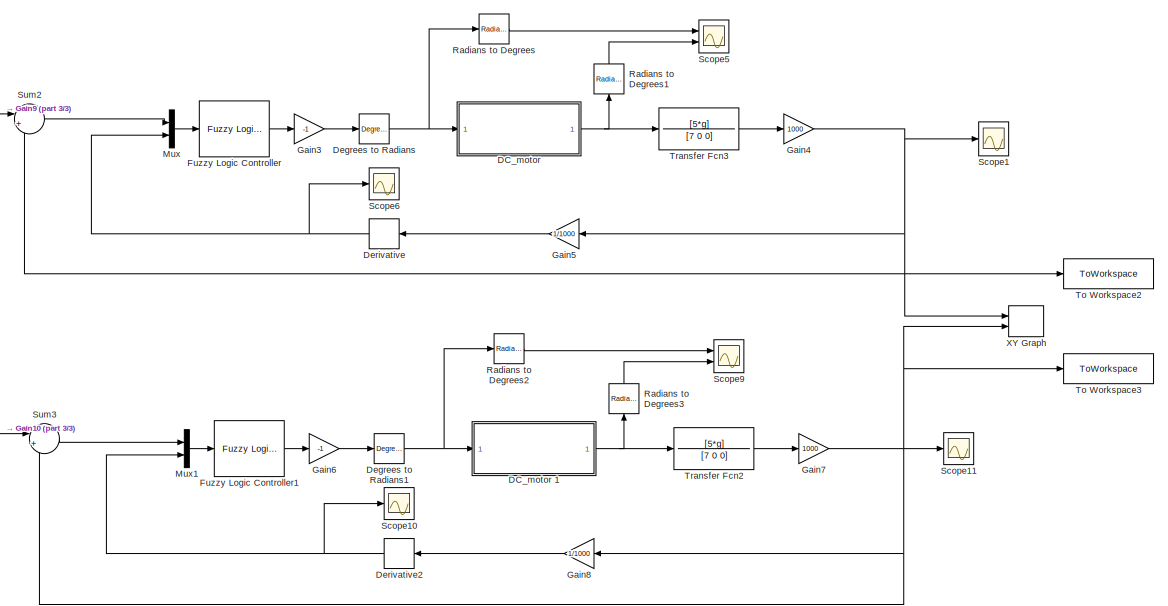
[diagram: root canvas - part 1/3, right side, full height]
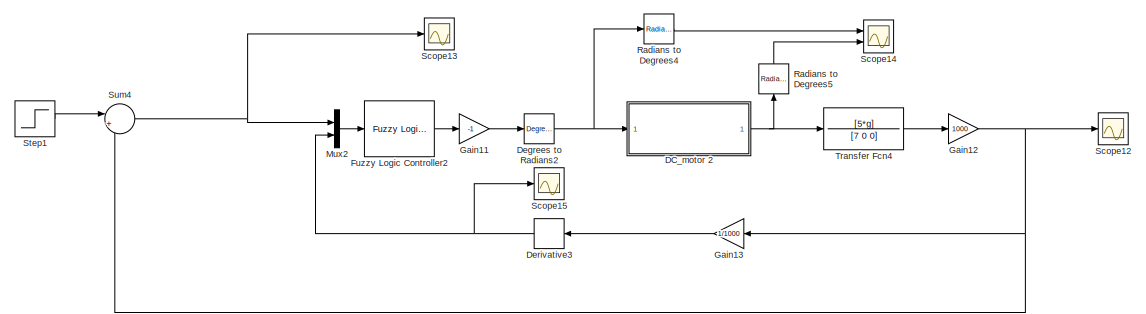
[diagram: root canvas - part 2/3, middle left region]
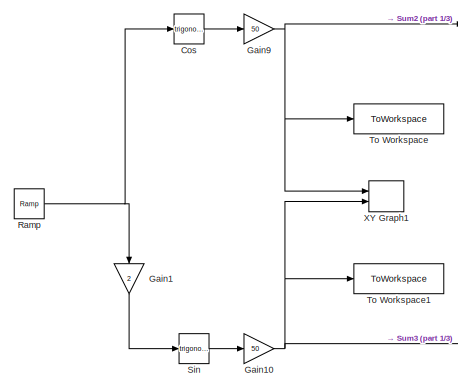
[diagram: root canvas - part 3/3, central region]
MODEL slx_66299d104e34
KIND model
CONFIG AbsTol = auto
CONFIG EnableMultiTasking = off
CONFIG FixedStep = 0.01
CONFIG MaxStep = auto
CONFIG MinStep = auto
CONFIG RelTol = 1e-3
CONFIG SampleTimeConstraint = Unconstrained
CONFIG SolverName = FixedStepAuto
CONFIG StartTime = 0.0
CONFIG StopTime = 17
BLOCK [Trigonometry] Cos
  Ports = [1, 1]
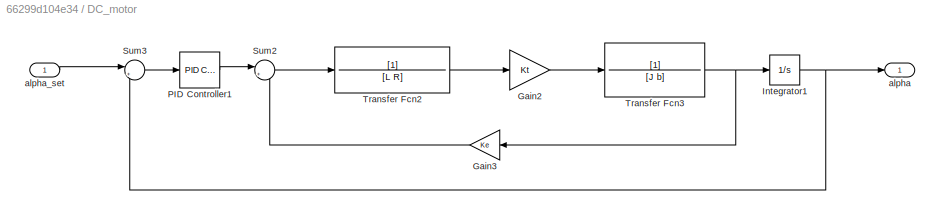
BLOCK [SubSystem] DC_motor 
  Ports = [1, 1]
  RequestExecContextInheritance = off
BLOCK [Gain] DC_motor /Gain2
  Gain = Kt
BLOCK [Gain] DC_motor /Gain3
  Gain = Ke
  NameLocation = top
BLOCK [Integrator] DC_motor /Integrator1
  Ports = [1, 1]
BLOCK [Reference] DC_motor /PID Controller1  REF=slpidlib/PID Controller
  Ports = [1, 1]
  SourceBlock = slpidlib/PID Controller
  SourceProductBaseCode = SL
  SourceType = PID 1dof
BLOCK [Sum] DC_motor /Sum2
  Inputs = |+-
  Ports = [2, 1]
BLOCK [Sum] DC_motor /Sum3
  Inputs = |+-
  Ports = [2, 1]
BLOCK [TransferFcn] DC_motor /Transfer Fcn2
  Denominator = [L R]
BLOCK [TransferFcn] DC_motor /Transfer Fcn3
  Denominator = [J b]
BLOCK [Outport] DC_motor /alpha
BLOCK [Inport] DC_motor /alpha_set
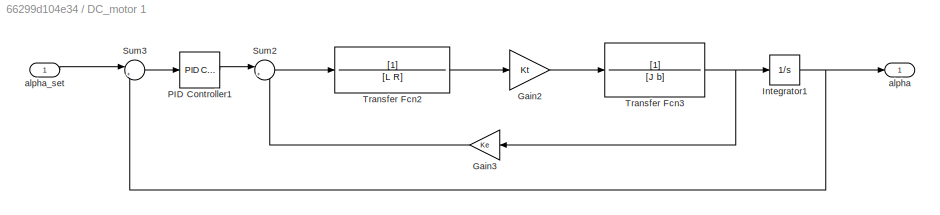
BLOCK [SubSystem] DC_motor 1
  Ports = [1, 1]
  RequestExecContextInheritance = off
BLOCK [Gain] DC_motor 1/Gain2
  Gain = Kt
BLOCK [Gain] DC_motor 1/Gain3
  Gain = Ke
  NameLocation = top
BLOCK [Integrator] DC_motor 1/Integrator1
  Ports = [1, 1]
BLOCK [Reference] DC_motor 1/PID Controller1  REF=slpidlib/PID Controller
  Ports = [1, 1]
  SourceBlock = slpidlib/PID Controller
  SourceProductBaseCode = SL
  SourceType = PID 1dof
BLOCK [Sum] DC_motor 1/Sum2
  Inputs = |+-
  Ports = [2, 1]
BLOCK [Sum] DC_motor 1/Sum3
  Inputs = |+-
  Ports = [2, 1]
BLOCK [TransferFcn] DC_motor 1/Transfer Fcn2
  Denominator = [L R]
BLOCK [TransferFcn] DC_motor 1/Transfer Fcn3
  Denominator = [J b]
BLOCK [Outport] DC_motor 1/alpha
BLOCK [Inport] DC_motor 1/alpha_set
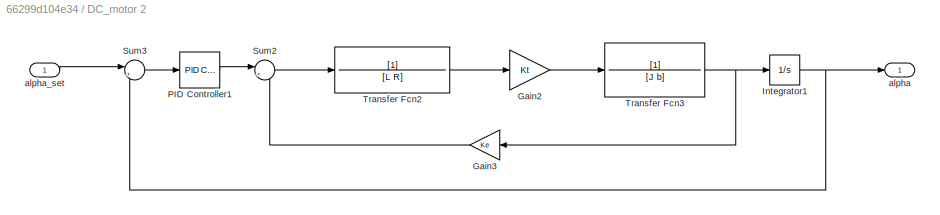
BLOCK [SubSystem] DC_motor 2
  Ports = [1, 1]
  RequestExecContextInheritance = off
BLOCK [Gain] DC_motor 2/Gain2
  Gain = Kt
BLOCK [Gain] DC_motor 2/Gain3
  Gain = Ke
  NameLocation = top
BLOCK [Integrator] DC_motor 2/Integrator1
  Ports = [1, 1]
BLOCK [Reference] DC_motor 2/PID Controller1  REF=slpidlib/PID Controller
  Ports = [1, 1]
  SourceBlock = slpidlib/PID Controller
  SourceProductBaseCode = SL
  SourceType = PID 1dof
BLOCK [Sum] DC_motor 2/Sum2
  Inputs = |+-
  Ports = [2, 1]
BLOCK [Sum] DC_motor 2/Sum3
  Inputs = |+-
  Ports = [2, 1]
BLOCK [TransferFcn] DC_motor 2/Transfer Fcn2
  Denominator = [L R]
BLOCK [TransferFcn] DC_motor 2/Transfer Fcn3
  Denominator = [J b]
BLOCK [Outport] DC_motor 2/alpha
BLOCK [Inport] DC_motor 2/alpha_set
BLOCK [Reference] Degrees to Radians  REF=simulink_extras/Transformations/Degrees to
Radians
  Ports = [1, 1]
  SourceBlock = simulink_extras/Transformations/Degrees to\nRadians
  SourceProductBaseCode = SL
  SourceType = DegreesToRadians
BLOCK [Reference] Degrees to Radians1  REF=simulink_extras/Transformations/Degrees to
Radians
  Ports = [1, 1]
  SourceBlock = simulink_extras/Transformations/Degrees to\nRadians
  SourceProductBaseCode = SL
  SourceType = DegreesToRadians
BLOCK [Reference] Degrees to Radians2  REF=simulink_extras/Transformations/Degrees to
Radians
  Ports = [1, 1]
  SourceBlock = simulink_extras/Transformations/Degrees to\nRadians
  SourceProductBaseCode = SL
  SourceType = DegreesToRadians
BLOCK [Derivative] Derivative
  NameLocation = top
BLOCK [Derivative] Derivative2
  NameLocation = top
BLOCK [Derivative] Derivative3
  NameLocation = top
BLOCK [Reference] Fuzzy Logic Controller  REF=fuzblock/Fuzzy Logic   (lib defined in mdl_858b3b3e7478)
Controller
  Ports = [1, 1]
  SourceBlock = fuzblock/Fuzzy Logic \nController
  SourceProductBaseCode = FL
  SourceType = Fuzzy Inference System
BLOCK [Reference] Fuzzy Logic Controller1  REF=fuzblock/Fuzzy Logic   (lib defined in mdl_858b3b3e7478)
Controller
  Ports = [1, 1]
  SourceBlock = fuzblock/Fuzzy Logic \nController
  SourceProductBaseCode = FL
  SourceType = Fuzzy Inference System
BLOCK [Reference] Fuzzy Logic Controller2  REF=fuzblock/Fuzzy Logic   (lib defined in mdl_858b3b3e7478)
Controller
  Ports = [1, 1]
  SourceBlock = fuzblock/Fuzzy Logic \nController
  SourceProductBaseCode = FL
  SourceType = Fuzzy Inference System
BLOCK [Gain] Gain1
  Gain = 2
  NameLocation = left
BLOCK [Gain] Gain10
  Gain = 50
BLOCK [Gain] Gain11
  Gain = -1
BLOCK [Gain] Gain12
  Gain = 1000
BLOCK [Gain] Gain13
  Gain = 1/1000
  NameLocation = top
BLOCK [Gain] Gain3
  Gain = -1
BLOCK [Gain] Gain4
  Gain = 1000
BLOCK [Gain] Gain5
  Gain = 1/1000
  NameLocation = top
BLOCK [Gain] Gain6
  Gain = -1
BLOCK [Gain] Gain7
  Gain = 1000
BLOCK [Gain] Gain8
  Gain = 1/1000
  NameLocation = top
BLOCK [Gain] Gain9
  Gain = 50
BLOCK [Mux] Mux
  DisplayOption = bar
  Inputs = 2
  Ports = [2, 1]
BLOCK [Mux] Mux1
  DisplayOption = bar
  Inputs = 2
  Ports = [2, 1]
BLOCK [Mux] Mux2
  DisplayOption = bar
  Inputs = 2
  Ports = [2, 1]
BLOCK [Reference] Radians to Degrees  REF=simulink_extras/Transformations/Radians
to Degrees
  Ports = [1, 1]
  SourceBlock = simulink_extras/Transformations/Radians\nto Degrees
  SourceProductBaseCode = SL
  SourceType = RadiansToDegrees
BLOCK [Reference] Radians to Degrees1  REF=simulink_extras/Transformations/Radians
to Degrees
  NameLocation = right
  Ports = [1, 1]
  SourceBlock = simulink_extras/Transformations/Radians\nto Degrees
  SourceProductBaseCode = SL
  SourceType = RadiansToDegrees
BLOCK [Reference] Radians to Degrees2  REF=simulink_extras/Transformations/Radians
to Degrees
  Ports = [1, 1]
  SourceBlock = simulink_extras/Transformations/Radians\nto Degrees
  SourceProductBaseCode = SL
  SourceType = RadiansToDegrees
BLOCK [Reference] Radians to Degrees3  REF=simulink_extras/Transformations/Radians
to Degrees
  NameLocation = right
  Ports = [1, 1]
  SourceBlock = simulink_extras/Transformations/Radians\nto Degrees
  SourceProductBaseCode = SL
  SourceType = RadiansToDegrees
BLOCK [Reference] Radians to Degrees4  REF=simulink_extras/Transformations/Radians
to Degrees
  Ports = [1, 1]
  SourceBlock = simulink_extras/Transformations/Radians\nto Degrees
  SourceProductBaseCode = SL
  SourceType = RadiansToDegrees
BLOCK [Reference] Radians to Degrees5  REF=simulink_extras/Transformations/Radians
to Degrees
  NameLocation = right
  Ports = [1, 1]
  SourceBlock = simulink_extras/Transformations/Radians\nto Degrees
  SourceProductBaseCode = SL
  SourceType = RadiansToDegrees
BLOCK [Reference] Ramp  REF=simulink/Sources/Ramp
  Ports = [0, 1]
  SourceBlock = simulink/Sources/Ramp
  SourceProductBaseCode = SL
  SourceType = Ramp
BLOCK [Scope] Scope1
  Floating = off
  NumInputPorts = 1
  Ports = [1]
  ScopeSpecificationString = Simulink.scopes.TimeScopeBlockCfg('CurrentConfiguration', extmgr.ConfigurationSet(extmgr.Configuration('Core','General UI',true,'FigureColor',[1 1 1]),extmgr.Configuration('Core','Source UI',true),extmgr.Configuration('Sources','WiredSimulink',true,'DataLoggingVariableName','ScopeData1'),extmgr.Configuration('Visuals','Time Domain',true,'SerializedDisplays',{struct('MinYLimReal','-6.36625','MaxYLi...<+1561ch>
BLOCK [Scope] Scope10
  Floating = off
  NumInputPorts = 1
  Ports = [1]
  ScopeSpecificationString = Simulink.scopes.TimeScopeBlockCfg('CurrentConfiguration', extmgr.ConfigurationSet(extmgr.Configuration('Core','General UI',true),extmgr.Configuration('Core','Source UI',true),extmgr.Configuration('Sources','WiredSimulink',true,'DataLoggingVariableName','ScopeData1'),extmgr.Configuration('Visuals','Time Domain',true,'SerializedDisplays',{struct('MinYLimReal','-0.0762','MaxYLimReal','0.12111','YLabe...<+1438ch>
BLOCK [Scope] Scope11
  Floating = off
  NumInputPorts = 1
  Ports = [1]
  ScopeSpecificationString = Simulink.scopes.TimeScopeBlockCfg('CurrentConfiguration', extmgr.ConfigurationSet(extmgr.Configuration('Core','General UI',true,'FigureColor',[1 1 1]),extmgr.Configuration('Core','Source UI',true),extmgr.Configuration('Sources','WiredSimulink',true,'DataLoggingVariableName','ScopeData4'),extmgr.Configuration('Visuals','Time Domain',true,'SerializedDisplays',{struct('MinYLimReal','-63.8992','MaxYLi...<+1561ch>
BLOCK [Scope] Scope12
  Floating = off
  NumInputPorts = 1
  Ports = [1]
  ScopeSpecificationString = Simulink.scopes.TimeScopeBlockCfg('CurrentConfiguration', extmgr.ConfigurationSet(extmgr.Configuration('Core','General UI',true,'FigureColor',[1 1 1]),extmgr.Configuration('Core','Source UI',true),extmgr.Configuration('Sources','WiredSimulink',true,'DataLoggingVariableName','ScopeData1'),extmgr.Configuration('Visuals','Time Domain',true,'SerializedDisplays',{struct('MinYLimReal','-203.79732','MaxY...<+1588ch>
BLOCK [Scope] Scope13
  Floating = off
  NumInputPorts = 1
  Ports = [1]
  ScopeSpecificationString = Simulink.scopes.TimeScopeBlockCfg('CurrentConfiguration', extmgr.ConfigurationSet(extmgr.Configuration('Core','General UI',true),extmgr.Configuration('Core','Source UI',true),extmgr.Configuration('Sources','WiredSimulink',true,'DataLoggingVariableName','ScopeData2'),extmgr.Configuration('Visuals','Time Domain',true,'SerializedDisplays',{struct('MinYLimReal','-7.29379','MaxYLimReal','56.36598','YLa...<+1467ch>
BLOCK [Scope] Scope14
  Floating = off
  NumInputPorts = 2
  Ports = [2]
  ScopeSpecificationString = Simulink.scopes.TimeScopeBlockCfg('CurrentConfiguration', extmgr.ConfigurationSet(extmgr.Configuration('Core','General UI',true),extmgr.Configuration('Core','Source UI',true),extmgr.Configuration('Sources','WiredSimulink',true,'DataLoggingVariableName','ScopeData3'),extmgr.Configuration('Visuals','Time Domain',true,'SerializedDisplays',{struct('MinYLimReal','-4.24583','MaxYLimReal','4.24273','YLab...<+1862ch>
BLOCK [Scope] Scope15
  Floating = off
  NumInputPorts = 1
  Ports = [1]
  ScopeSpecificationString = Simulink.scopes.TimeScopeBlockCfg('CurrentConfiguration', extmgr.ConfigurationSet(extmgr.Configuration('Core','General UI',true),extmgr.Configuration('Core','Source UI',true),extmgr.Configuration('Sources','WiredSimulink',true,'DataLoggingVariableName','ScopeData4'),extmgr.Configuration('Visuals','Time Domain',true,'SerializedDisplays',{struct('MinYLimReal','-0.0762','MaxYLimReal','0.12111','YLabe...<+1798ch>
BLOCK [Scope] Scope5
  Floating = off
  NumInputPorts = 2
  Ports = [2]
  ScopeSpecificationString = Simulink.scopes.TimeScopeBlockCfg('CurrentConfiguration', extmgr.ConfigurationSet(extmgr.Configuration('Core','General UI',true),extmgr.Configuration('Core','Source UI',true),extmgr.Configuration('Sources','WiredSimulink',true,'DataLoggingVariableName','ScopeData5'),extmgr.Configuration('Visuals','Time Domain',true,'SerializedDisplays',{struct('MinYLimReal','-8.48122','MaxYLimReal','8.49118','YLab...<+1500ch>
BLOCK [Scope] Scope6
  Floating = off
  NumInputPorts = 1
  Ports = [1]
  ScopeSpecificationString = Simulink.scopes.TimeScopeBlockCfg('CurrentConfiguration', extmgr.ConfigurationSet(extmgr.Configuration('Core','General UI',true),extmgr.Configuration('Core','Source UI',true),extmgr.Configuration('Sources','WiredSimulink',true,'DataLoggingVariableName','ScopeData1'),extmgr.Configuration('Visuals','Time Domain',true,'SerializedDisplays',{struct('MinYLimReal','-0.0762','MaxYLimReal','0.12111','YLabe...<+1438ch>
BLOCK [Scope] Scope9
  Floating = off
  NumInputPorts = 2
  Ports = [2]
  ScopeSpecificationString = Simulink.scopes.TimeScopeBlockCfg('CurrentConfiguration', extmgr.ConfigurationSet(extmgr.Configuration('Core','General UI',true),extmgr.Configuration('Core','Source UI',true),extmgr.Configuration('Sources','WiredSimulink',true,'DataLoggingVariableName','ScopeData3'),extmgr.Configuration('Visuals','Time Domain',true,'SerializedDisplays',{struct('MinYLimReal','-8.48122','MaxYLimReal','8.49118','YLab...<+1500ch>
BLOCK [Trigonometry] Sin
  Ports = [1, 1]
BLOCK [Step] Step1
  After = 50
  SampleTime = 0
  Time = 0
BLOCK [Sum] Sum2
  Inputs = |+-
  Ports = [2, 1]
BLOCK [Sum] Sum3
  Inputs = |+-
  Ports = [2, 1]
BLOCK [Sum] Sum4
  Inputs = |+-
  Ports = [2, 1]
BLOCK [ToWorkspace] To Workspace
  FixptAsFi = on
  MaxDataPoints = inf
  Ports = [1]
  SampleTime = -1
  VariableName = x_ref
BLOCK [ToWorkspace] To Workspace1
  FixptAsFi = on
  MaxDataPoints = inf
  Ports = [1]
  SampleTime = -1
  VariableName = y_ref
BLOCK [ToWorkspace] To Workspace2
  FixptAsFi = on
  MaxDataPoints = inf
  Ports = [1]
  SampleTime = -1
  VariableName = x_real
BLOCK [ToWorkspace] To Workspace3
  FixptAsFi = on
  MaxDataPoints = inf
  Ports = [1]
  SampleTime = -1
  VariableName = y_real
BLOCK [TransferFcn] Transfer Fcn2
  Denominator = [7 0 0]
  Numerator = [5*g]
BLOCK [TransferFcn] Transfer Fcn3
  Denominator = [7 0 0]
  Numerator = [5*g]
BLOCK [TransferFcn] Transfer Fcn4
  Denominator = [7 0 0]
  Numerator = [5*g]
BLOCK [Record] XY Graph
  CompatibilityTag = XY
  FileSettingsInternal = {"entries":[{"content":{"excelSettings":{"content":{},"type":"Streamout.ExcelSettings"}},"type":"Streamout.FileSettingStorage","uuid":"afb4c868-1969-4ea8-89d1-48caf8c4fd68"}],"packageUris":["http://schema.mathworks.com/mf0/streamout_blocks/R2020a"],"version":"1.0"}
  Layout = [1 1]
  Ports = [2]
  SignalsInternal = {"entries":[{"content":{"signals":[{"content":{"blockPath":["fuzzy_uirs/XY Graph"],"channel":[],"dimensions":[1],"domain":"fuzzy_uirs/XY Graph","lineColor":"#a2142f","plots":[1],"port":1,"sid":[""],"signalID":79152,"signalName":"Gain4"},"type":"RecordBlkView.Signal","uuid":"c0bbbc2e-870e-4cf8-b3f4-c9450fb1db15"},{"content":{"blockPath":["fuzzy_uirs/XY Graph"],"channel":[],"dimensions":[1],"domain"...<+369ch>
  VisualizationBindings = {"xyplotplugin":{"info":[{"series":[{"bindingParametersList":[{"parameter":"X-Axis","signalID":79152,"signalName":"Gain4"},{"parameter":"Y-Axis","signalID":79156,"signalName":"Gain7"}],"seriesID":60483}],"subplotID":1}]}}
BLOCK [Record] XY Graph1
  CompatibilityTag = XY
  FileSettingsInternal = {"entries":[{"content":{"excelSettings":{"content":{},"type":"Streamout.ExcelSettings"}},"type":"Streamout.FileSettingStorage","uuid":"2a686f37-4683-499c-9b28-704c226203bf"}],"packageUris":["http://schema.mathworks.com/mf0/streamout_blocks/R2020a"],"version":"1.0"}
  Layout = [1 1]
  Ports = [2]
  SignalsInternal = {"entries":[{"content":{"signals":[{"content":{"blockPath":["fuzzy_uirs/XY Graph1"],"channel":[],"dimensions":[1],"domain":"fuzzy_uirs/XY Graph1","lineColor":"#a2142f","plots":[1],"port":1,"sid":[""],"signalID":79160,"signalName":"Gain9"},"type":"RecordBlkView.Signal","uuid":"5bdc1996-2df4-4c65-8b97-25dc56d0c1d6"},{"content":{"blockPath":["fuzzy_uirs/XY Graph1"],"channel":[],"dimensions":[1],"doma...<+374ch>
  VisualizationBindings = {"xyplotplugin":{"info":[{"series":[{"bindingParametersList":[{"parameter":"X-Axis","signalID":79160,"signalName":"Gain9"},{"parameter":"Y-Axis","signalID":79164,"signalName":"Gain10"}],"seriesID":17296}],"subplotID":1}]}}
LINE Cos:1 -> Gain9:1
LINE DC_motor /Gain2:1 -> DC_motor /Transfer Fcn3:1
LINE DC_motor /Gain3:1 -> DC_motor /Sum2:2
NET DC_motor /Integrator1:1 -> DC_motor /Sum3:2, DC_motor /alpha:1
LINE DC_motor /PID Controller1:1 -> DC_motor /Sum2:1
LINE DC_motor /Sum2:1 -> DC_motor /Transfer Fcn2:1
LINE DC_motor /Sum3:1 -> DC_motor /PID Controller1:1
LINE DC_motor /Transfer Fcn2:1 -> DC_motor /Gain2:1
NET DC_motor /Transfer Fcn3:1 -> DC_motor /Gain3:1, DC_motor /Integrator1:1
LINE DC_motor /alpha_set:1 -> DC_motor /Sum3:1
LINE DC_motor 1/Gain2:1 -> DC_motor 1/Transfer Fcn3:1
LINE DC_motor 1/Gain3:1 -> DC_motor 1/Sum2:2
NET DC_motor 1/Integrator1:1 -> DC_motor 1/Sum3:2, DC_motor 1/alpha:1
LINE DC_motor 1/PID Controller1:1 -> DC_motor 1/Sum2:1
LINE DC_motor 1/Sum2:1 -> DC_motor 1/Transfer Fcn2:1
LINE DC_motor 1/Sum3:1 -> DC_motor 1/PID Controller1:1
LINE DC_motor 1/Transfer Fcn2:1 -> DC_motor 1/Gain2:1
NET DC_motor 1/Transfer Fcn3:1 -> DC_motor 1/Gain3:1, DC_motor 1/Integrator1:1
LINE DC_motor 1/alpha_set:1 -> DC_motor 1/Sum3:1
NET DC_motor 1:1 -> Radians to Degrees3:1, Transfer Fcn2:1
LINE DC_motor 2/Gain2:1 -> DC_motor 2/Transfer Fcn3:1
LINE DC_motor 2/Gain3:1 -> DC_motor 2/Sum2:2
NET DC_motor 2/Integrator1:1 -> DC_motor 2/Sum3:2, DC_motor 2/alpha:1
LINE DC_motor 2/PID Controller1:1 -> DC_motor 2/Sum2:1
LINE DC_motor 2/Sum2:1 -> DC_motor 2/Transfer Fcn2:1
LINE DC_motor 2/Sum3:1 -> DC_motor 2/PID Controller1:1
LINE DC_motor 2/Transfer Fcn2:1 -> DC_motor 2/Gain2:1
NET DC_motor 2/Transfer Fcn3:1 -> DC_motor 2/Gain3:1, DC_motor 2/Integrator1:1
LINE DC_motor 2/alpha_set:1 -> DC_motor 2/Sum3:1
NET DC_motor 2:1 -> Radians to Degrees5:1, Transfer Fcn4:1
NET DC_motor :1 -> Radians to Degrees1:1, Transfer Fcn3:1
NET Degrees to Radians1:1 -> DC_motor 1:1, Radians to Degrees2:1
NET Degrees to Radians2:1 -> DC_motor 2:1, Radians to Degrees4:1
NET Degrees to Radians:1 -> DC_motor :1, Radians to Degrees:1
NET Derivative2:1 -> Mux1:2, Scope10:1
NET Derivative3:1 -> Mux2:2, Scope15:1
NET Derivative:1 -> Mux:2, Scope6:1
LINE Fuzzy Logic Controller1:1 -> Gain6:1
LINE Fuzzy Logic Controller2:1 -> Gain11:1
LINE Fuzzy Logic Controller:1 -> Gain3:1
NET Gain10:1 -> Sum3:1, To Workspace1:1, XY Graph1:2
LINE Gain11:1 -> Degrees to Radians2:1
NET Gain12:1 -> Gain13:1, Scope12:1, Sum4:2
LINE Gain13:1 -> Derivative3:1
LINE Gain1:1 -> Sin:1
LINE Gain3:1 -> Degrees to Radians:1
NET Gain4:1 -> Gain5:1, Scope1:1, Sum2:2, To Workspace2:1, XY Graph:1
LINE Gain5:1 -> Derivative:1
LINE Gain6:1 -> Degrees to Radians1:1
NET Gain7:1 -> Gain8:1, Scope11:1, Sum3:2, To Workspace3:1, XY Graph:2
LINE Gain8:1 -> Derivative2:1
NET Gain9:1 -> Sum2:1, To Workspace:1, XY Graph1:1
LINE Mux1:1 -> Fuzzy Logic Controller1:1
LINE Mux2:1 -> Fuzzy Logic Controller2:1
LINE Mux:1 -> Fuzzy Logic Controller:1
LINE Radians to Degrees1:1 -> Scope5:2
LINE Radians to Degrees2:1 -> Scope9:1
LINE Radians to Degrees3:1 -> Scope9:2
LINE Radians to Degrees4:1 -> Scope14:1
LINE Radians to Degrees5:1 -> Scope14:2
LINE Radians to Degrees:1 -> Scope5:1
NET Ramp:1 -> Cos:1, Gain1:1
LINE Sin:1 -> Gain10:1
LINE Step1:1 -> Sum4:1
LINE Sum2:1 -> Mux:1
LINE Sum3:1 -> Mux1:1
NET Sum4:1 -> Mux2:1, Scope13:1
LINE Transfer Fcn2:1 -> Gain7:1
LINE Transfer Fcn3:1 -> Gain4:1
LINE Transfer Fcn4:1 -> Gain12:1
note: NET lines group one-source signal fan-out (src -> all destinations, sorted); 1:1 wires keep LINE
